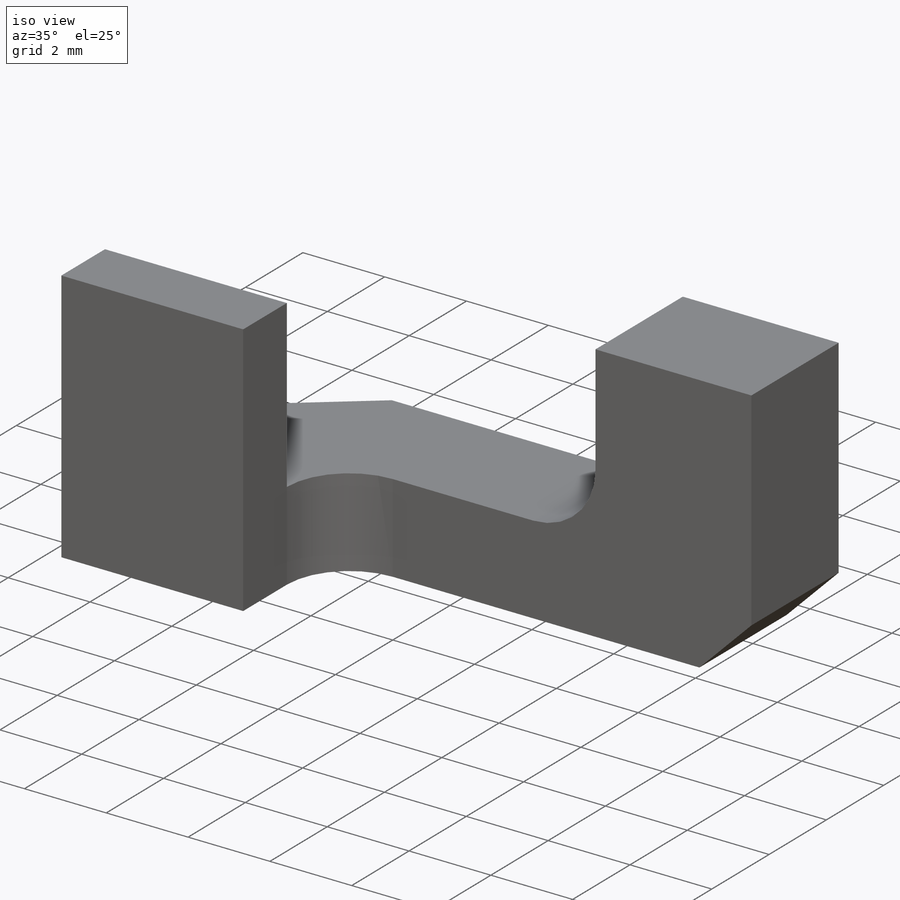
[diagram: iso view]
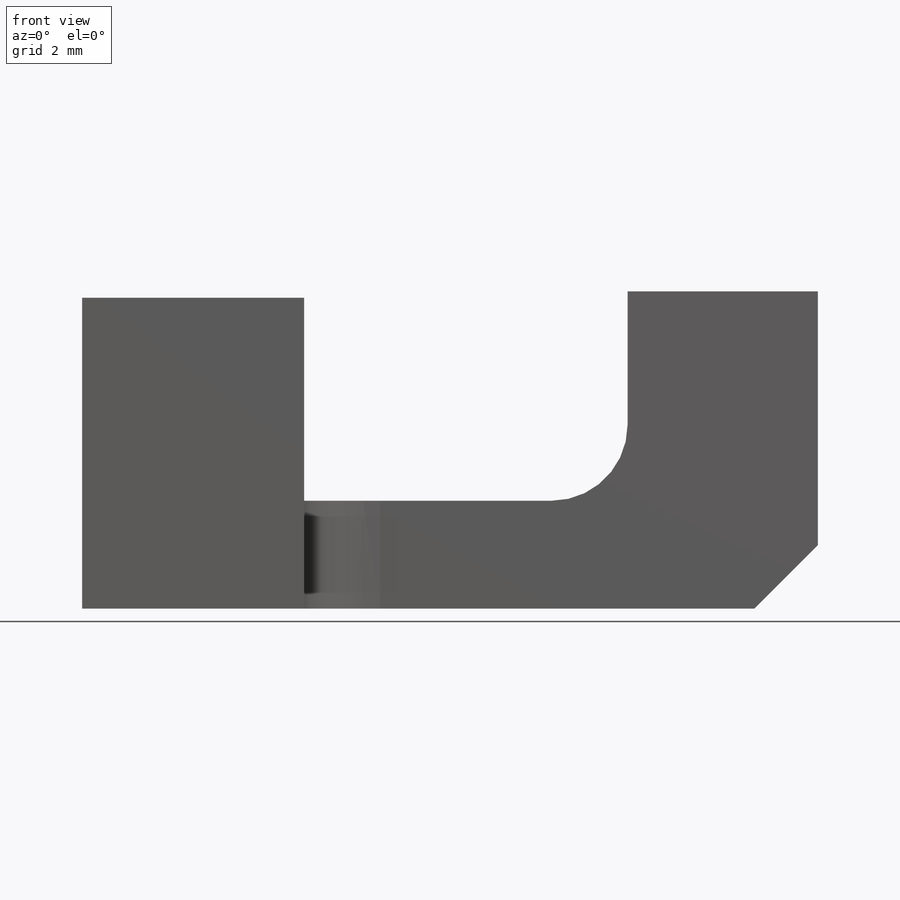
[diagram: front view]
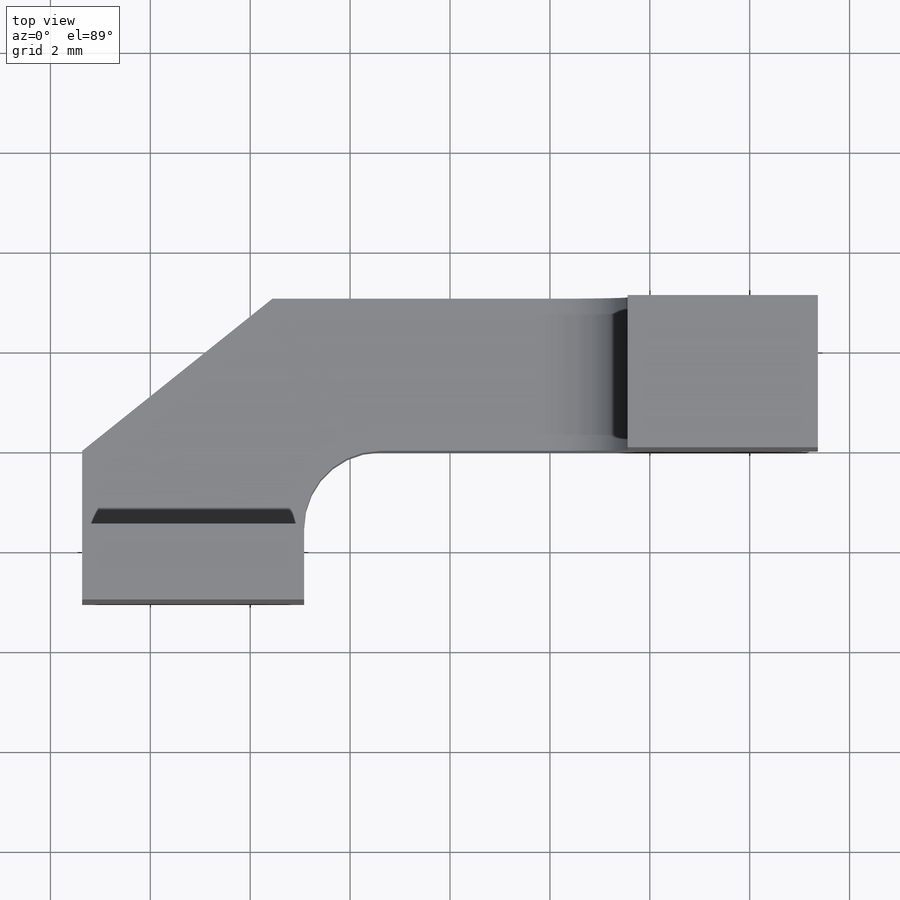
[diagram: top view]
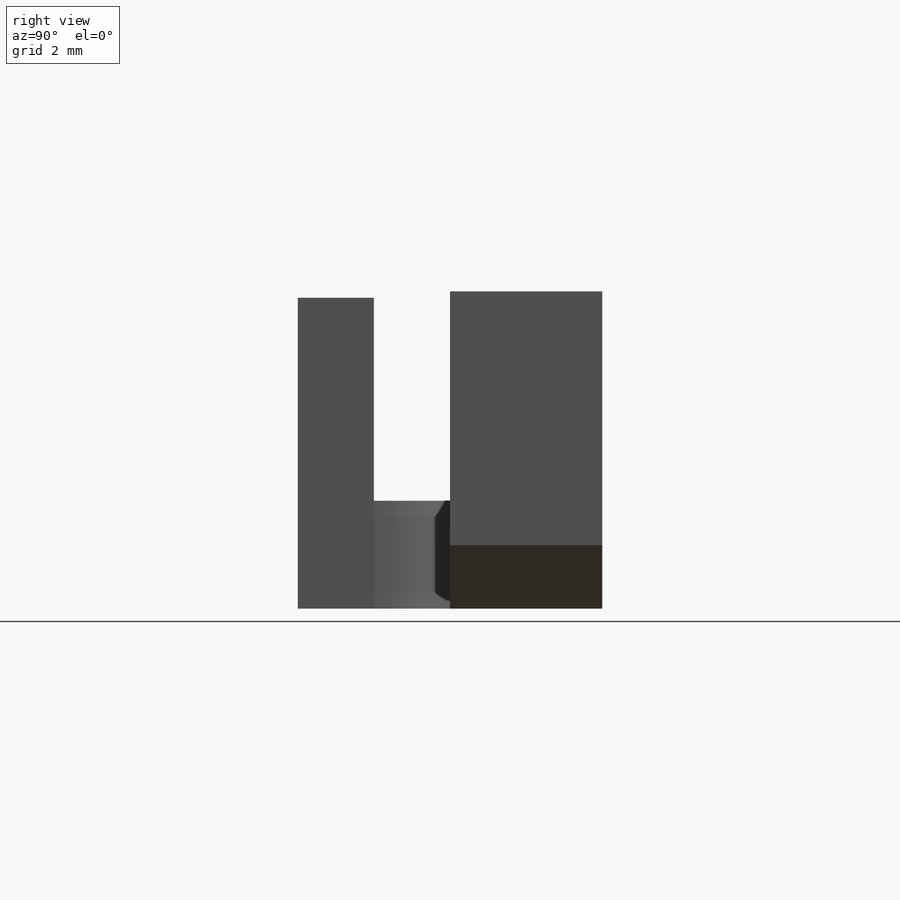
[diagram: right view]
SOLIDWORKS PART (.sldprt)
format: sldprt  version: not decoded by parser v0  size: 260,608 bytes
history: native  units: mm
features: sketch x10, cut_extrude x7, extrude x2, material x1 (+13 scaffold rows collapsed)
feature tree (33):
  scaffold x13  (default folders/planes/origin — collapsed)
  material  "Material <not specified>"
  sketch  "Sketch1"  dims[D1=14.732mm D2=6.096mm]
  extrude  "Boss-Extrude1"  Depth=6.35mm
  sketch  "Sketch4"  dims[D1=3.048mm D2=10.287mm D3=1.524mm]
  cut_extrude  "Cut-Extrude2"  [1 undecoded]
  sketch  "Sketch3"  dims[D1=10.922mm]
  cut_extrude  "Cut-Extrude1"  Depth=2.667mm
  sketch  "Sketch8"  dims[D1=3.81mm]
  cut_extrude  "Cut-Extrude3"  [1 undecoded]
  sketch  "Sketch9"  dims[D1=1.524mm]
  extrude  "Boss-Extrude2"  Depth=2.54mm
  sketch  "Sketch10"  dims[D1=1.27mm D2=1.27mm]
  cut_extrude  "Cut-Extrude4"  [1 undecoded]
  sketch  "Sketch12"  dims[D1=1.524mm D2=1.524mm D3=0.635mm]
  cut_extrude  "Cut-Extrude5"  Depth=4.191mm
  sketch  "Sketch13"  dims[D1=4.445mm]
  sketch  "Sketch14"  dims[D1=~0.048393mm]
  sketch  "Sketch15"
  cut_extrude  "Cut-Extrude10"  [1 undecoded]
  cut_extrude  "Cut-Extrude11"  Depth=4.572mm
decode coverage: 14 of 19 modeling features carry decoded parameters
note: ~ marks probable driven/reference dimensions
note: 4 parameter values undecoded
summary: no parameter record found for 4 features
note: suppression state not decoded; provenance and decode notes live in map.json
